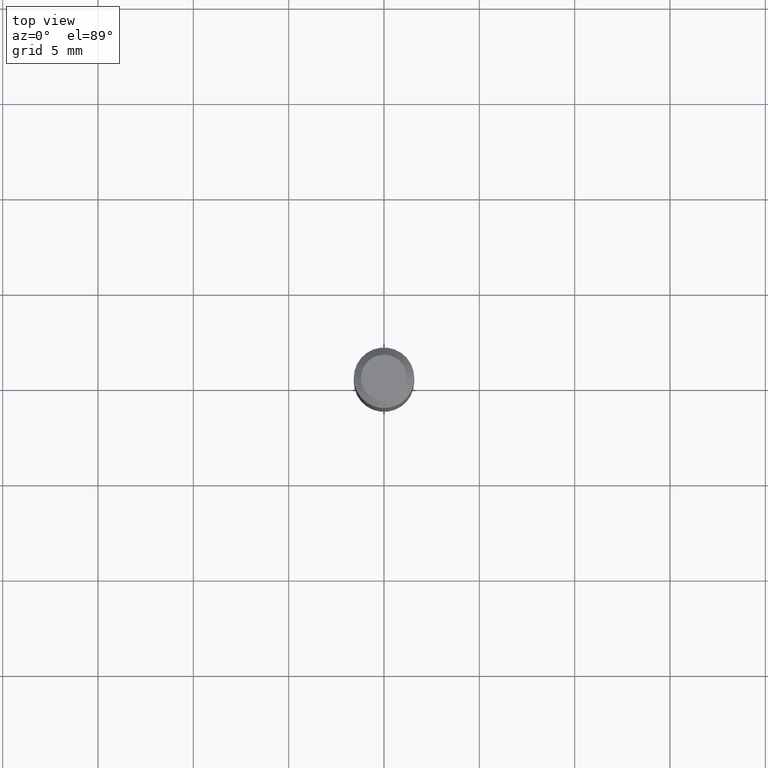
[diagram: clean part render]
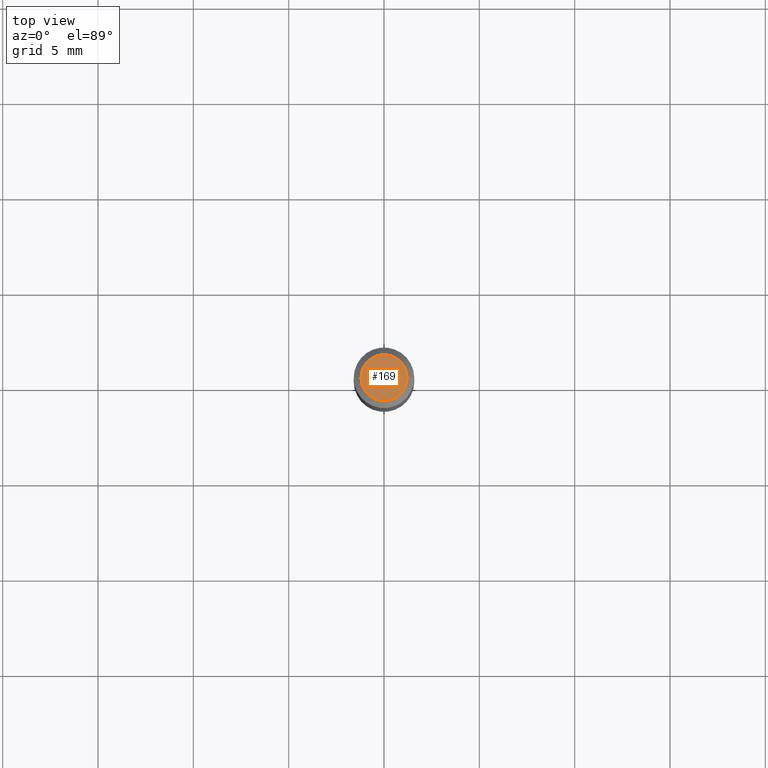
[diagram: same view with one face highlighted and labeled with its STEP entity id]
A machine part, top view. The second image highlights one B-rep face of the part: STEP entity #169.
In plain terms, the highlighted planar face has unit normal (0, -0, -1).
Its self-contained STEP definition (entity closure, byte-faithful):
#1 = DIRECTION ( 'NONE',  ( -1.000000000000000000, 6.982962677686265922E-15, -4.876176775795935793E-29 ) ) ;
#2 = CIRCLE ( 'NONE', #55, 0.04749999999999999362 ) ;
#19 = VERTEX_POINT ( 'NONE', #211 ) ;
#50 = VERTEX_POINT ( 'NONE', #325 ) ;
#55 = AXIS2_PLACEMENT_3D ( 'NONE', #333, #336, #391 ) ;
#61 = ORIENTED_EDGE ( 'NONE', *, *, #390, .T. ) ;
#80 = DIRECTION ( 'NONE',  ( -2.445468806185136597E-29, 3.491481338843145583E-15, 1.000000000000000000 ) ) ;
#131 = EDGE_LOOP ( 'NONE', ( #368, #61 ) ) ;
#169 = ADVANCED_FACE ( 'NONE', ( #356 ), #171, .F. ) ;
#171 = PLANE ( 'NONE',  #402 ) ;
#211 = CARTESIAN_POINT ( 'NONE',  ( 0.04749999999999999362, -4.035134999187569255E-16, 5.238176471756179596E-16 ) ) ;
#215 = DIRECTION ( 'NONE',  ( 1.000000000000000000, -6.982962677686267499E-15, 4.852736867747366768E-29 ) ) ;
#217 = CIRCLE ( 'NONE', #360, 0.04749999999999999362 ) ;
#319 = CARTESIAN_POINT ( 'NONE',  ( 3.316907271900976096E-16, 0.04749999999999999362, 9.606345999275830148E-17 ) ) ;
#325 = CARTESIAN_POINT ( 'NONE',  ( -0.04749999999999999362, 3.578768372314219874E-16, 5.238176471756130292E-16 ) ) ;
#333 = CARTESIAN_POINT ( 'NONE',  ( -1.280979716297259255E-44, 1.828899540070384152E-30, 5.238176471756153958E-16 ) ) ;
#336 = DIRECTION ( 'NONE',  ( -2.445468806185136597E-29, 3.491481338843145583E-15, 1.000000000000000000 ) ) ;
#356 = FACE_OUTER_BOUND ( 'NONE', #131, .T. ) ;
#360 = AXIS2_PLACEMENT_3D ( 'NONE', #429, #80, #215 ) ;
#368 = ORIENTED_EDGE ( 'NONE', *, *, #428, .T. ) ;
#390 = EDGE_CURVE ( 'NONE', #19, #50, #217, .T. ) ;
#391 = DIRECTION ( 'NONE',  ( 1.000000000000000000, -6.982962677686267499E-15, 4.852736867747366768E-29 ) ) ;
#402 = AXIS2_PLACEMENT_3D ( 'NONE', #319, #466, #1 ) ;
#428 = EDGE_CURVE ( 'NONE', #50, #19, #2, .T. ) ;
#429 = CARTESIAN_POINT ( 'NONE',  ( -1.280979716297259255E-44, 1.828899540070384152E-30, 5.238176471756153958E-16 ) ) ;
#466 = DIRECTION ( 'NONE',  ( 2.438088387897960049E-29, -3.491481338843145188E-15, -1.000000000000000000 ) ) ;